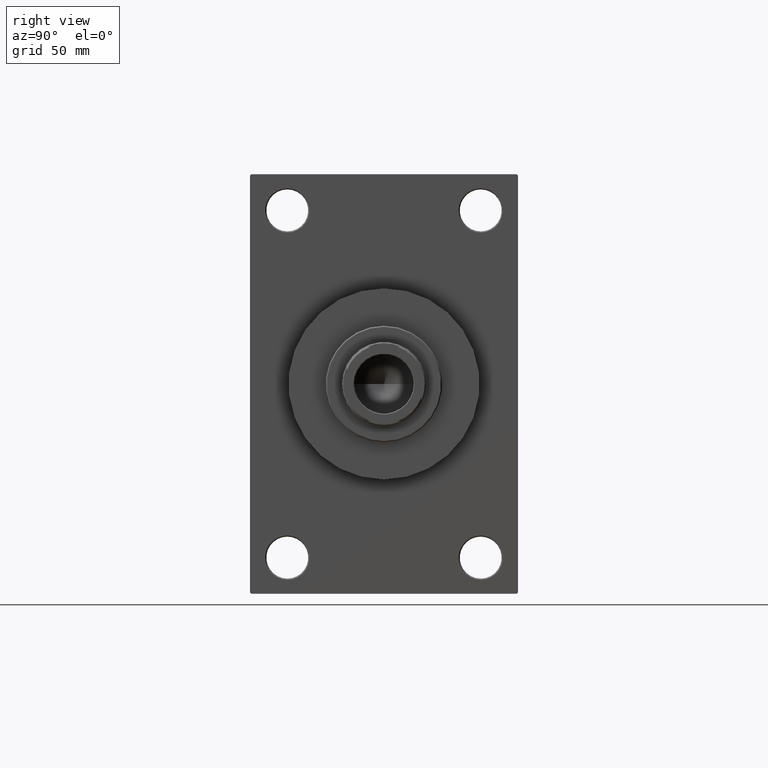
[diagram: clean part render]
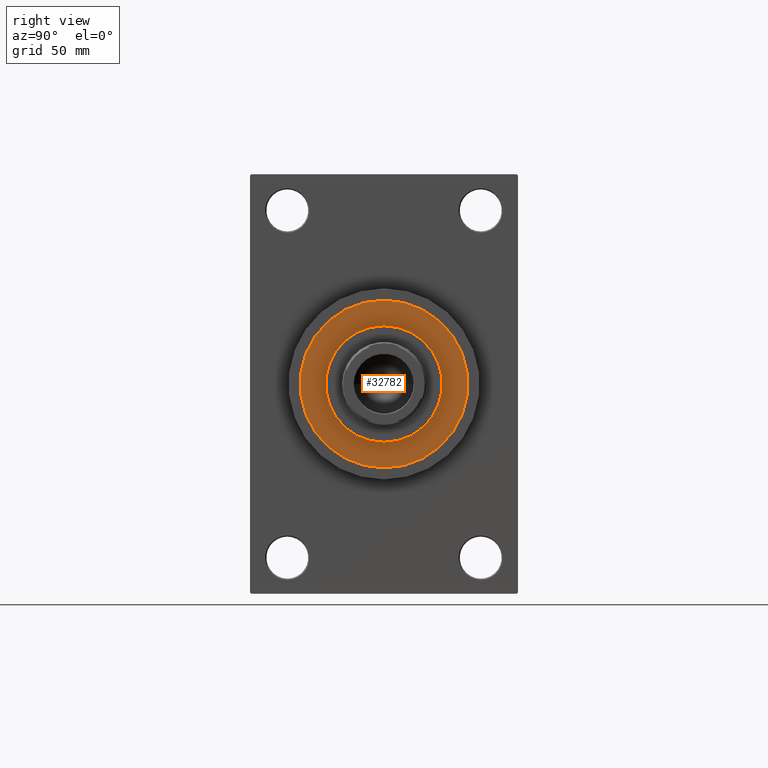
[diagram: same view with one face highlighted and labeled with its STEP entity id]
A machine part, right view. The second image highlights one B-rep face of the part: STEP entity #32782.
In plain terms, the highlighted planar face has unit normal (1, -0, -0).
Its self-contained STEP definition (entity closure, byte-faithful):
#975 = CIRCLE ( 'NONE', #13306, 36.00000000000000000 ) ;
#1061 = CARTESIAN_POINT ( 'NONE',  ( 0.000000000000000000, 0.000000000000000000, 43.25999999999999801 ) ) ;
#1156 = AXIS2_PLACEMENT_3D ( 'NONE', #20663, #31984, #28842 ) ;
#2030 = VERTEX_POINT ( 'NONE', #12375 ) ;
#4619 = AXIS2_PLACEMENT_3D ( 'NONE', #1061, #26603, #8284 ) ;
#6833 = VERTEX_POINT ( 'NONE', #37438 ) ;
#8284 = DIRECTION ( 'NONE',  ( 1.000000000000000000, 0.000000000000000000, -0.000000000000000000 ) ) ;
#11417 = EDGE_LOOP ( 'NONE', ( #26397, #12690 ) ) ;
#11611 = CIRCLE ( 'NONE', #25463, 25.00000000000000000 ) ;
#11901 = FACE_OUTER_BOUND ( 'NONE', #13616, .T. ) ;
#12375 = CARTESIAN_POINT ( 'NONE',  ( -36.00000000000000000, 0.000000000000000000, 43.25999999999999801 ) ) ;
#12385 = PLANE ( 'NONE',  #4619 ) ;
#12690 = ORIENTED_EDGE ( 'NONE', *, *, #44823, .F. ) ;
#13020 = CARTESIAN_POINT ( 'NONE',  ( 0.000000000000000000, 0.000000000000000000, 43.25999999999999801 ) ) ;
#13306 = AXIS2_PLACEMENT_3D ( 'NONE', #30533, #23559, #42353 ) ;
#13616 = EDGE_LOOP ( 'NONE', ( #22267, #36079 ) ) ;
#13846 = DIRECTION ( 'NONE',  ( 1.000000000000000000, 0.000000000000000000, 0.000000000000000000 ) ) ;
#20663 = CARTESIAN_POINT ( 'NONE',  ( 0.000000000000000000, 0.000000000000000000, 43.25999999999999801 ) ) ;
#20854 = CARTESIAN_POINT ( 'NONE',  ( 0.000000000000000000, 0.000000000000000000, 43.25999999999999801 ) ) ;
#22267 = ORIENTED_EDGE ( 'NONE', *, *, #26949, .T. ) ;
#23120 = CARTESIAN_POINT ( 'NONE',  ( -25.00000000000000000, 0.000000000000000000, 43.25999999999999801 ) ) ;
#23559 = DIRECTION ( 'NONE',  ( 0.000000000000000000, 0.000000000000000000, 1.000000000000000000 ) ) ;
#24847 = DIRECTION ( 'NONE',  ( 0.000000000000000000, 0.000000000000000000, 1.000000000000000000 ) ) ;
#25463 = AXIS2_PLACEMENT_3D ( 'NONE', #20854, #46403, #13846 ) ;
#25810 = CIRCLE ( 'NONE', #1156, 25.00000000000000000 ) ;
#25849 = CARTESIAN_POINT ( 'NONE',  ( 25.00000000000000000, 3.061616997868383043E-15, 43.25999999999999801 ) ) ;
#26397 = ORIENTED_EDGE ( 'NONE', *, *, #37421, .F. ) ;
#26603 = DIRECTION ( 'NONE',  ( 0.000000000000000000, 0.000000000000000000, 1.000000000000000000 ) ) ;
#26949 = EDGE_CURVE ( 'NONE', #2030, #6833, #30605, .T. ) ;
#28842 = DIRECTION ( 'NONE',  ( 1.000000000000000000, 0.000000000000000000, 0.000000000000000000 ) ) ;
#30533 = CARTESIAN_POINT ( 'NONE',  ( 0.000000000000000000, 0.000000000000000000, 43.25999999999999801 ) ) ;
#30605 = CIRCLE ( 'NONE', #46808, 36.00000000000000000 ) ;
#31984 = DIRECTION ( 'NONE',  ( 0.000000000000000000, 0.000000000000000000, 1.000000000000000000 ) ) ;
#32280 = VERTEX_POINT ( 'NONE', #23120 ) ;
#32782 = ADVANCED_FACE ( 'NONE', ( #33603, #11901 ), #12385, .T. ) ;
#33603 = FACE_BOUND ( 'NONE', #11417, .T. ) ;
#35811 = VERTEX_POINT ( 'NONE', #25849 ) ;
#36079 = ORIENTED_EDGE ( 'NONE', *, *, #42099, .T. ) ;
#37421 = EDGE_CURVE ( 'NONE', #32280, #35811, #11611, .T. ) ;
#37438 = CARTESIAN_POINT ( 'NONE',  ( 36.00000000000000000, 4.408728476930470856E-15, 43.25999999999999801 ) ) ;
#42099 = EDGE_CURVE ( 'NONE', #6833, #2030, #975, .T. ) ;
#42353 = DIRECTION ( 'NONE',  ( 1.000000000000000000, 0.000000000000000000, 0.000000000000000000 ) ) ;
#42443 = DIRECTION ( 'NONE',  ( 1.000000000000000000, 0.000000000000000000, 0.000000000000000000 ) ) ;
#44823 = EDGE_CURVE ( 'NONE', #35811, #32280, #25810, .T. ) ;
#46403 = DIRECTION ( 'NONE',  ( 0.000000000000000000, 0.000000000000000000, 1.000000000000000000 ) ) ;
#46808 = AXIS2_PLACEMENT_3D ( 'NONE', #13020, #24847, #42443 ) ;